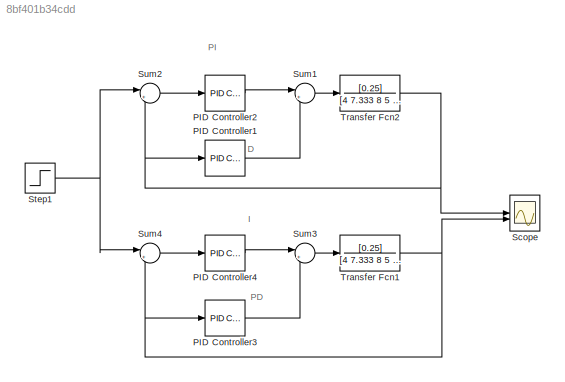
MODEL slx_8bf401b34cdd
KIND model
CONFIG AbsTol = auto
CONFIG EnableMultiTasking = off
CONFIG FixedStep = auto
CONFIG MaxStep = auto
CONFIG MinStep = auto
CONFIG RelTol = 1e-3
CONFIG SampleTimeConstraint = Unconstrained
CONFIG SolverName = VariableStepAuto
CONFIG StartTime = 0.0
CONFIG StopTime = 30
BLOCK [Reference] PID Controller1  REF=slpidlib/PID Controller
  LibrarySourceBlock = simulink/Continuous/PID Controller
  SourceBlock = slpidlib/PID Controller
  SourceType = PID 1dof
BLOCK [Reference] PID Controller2  REF=slpidlib/PID Controller
  LibrarySourceBlock = simulink/Continuous/PID Controller
  SourceBlock = slpidlib/PID Controller
  SourceType = PID 1dof
BLOCK [Reference] PID Controller3  REF=slpidlib/PID Controller
  LibrarySourceBlock = simulink/Continuous/PID Controller
  SourceBlock = slpidlib/PID Controller
  SourceType = PID 1dof
BLOCK [Reference] PID Controller4  REF=slpidlib/PID Controller
  LibrarySourceBlock = simulink/Continuous/PID Controller
  SourceBlock = slpidlib/PID Controller
  SourceType = PID 1dof
BLOCK [Scope] Scope
  Floating = off
  NumInputPorts = 2
  ScopeSpecificationString = Simulink.scopes.TimeScopeBlockCfg('CurrentConfiguration', extmgr.ConfigurationSet(extmgr.Configuration('Core','General UI',true,'FigureColor',[1 1 1]),extmgr.Configuration('Core','Source UI',true),extmgr.Configuration('Sources','WiredSimulink',true),extmgr.Configuration('Visuals','Time Domain',true,'SerializedDisplays',{struct('MinYLimReal','-0.1335','MaxYLimReal','1.2015','YLabelReal','','MinYLim...<+1689ch>
BLOCK [Step] Step1
  SampleTime = 0
  Time = 0
BLOCK [Sum] Sum1
  Inputs = |+-
BLOCK [Sum] Sum2
  Inputs = |+-
BLOCK [Sum] Sum3
  Inputs = |+-
BLOCK [Sum] Sum4
  Inputs = |+-
BLOCK [TransferFcn] Transfer Fcn1
  Denominator = [4 7.333 8 5 1]
  Numerator = [0.25]
BLOCK [TransferFcn] Transfer Fcn2
  Denominator = [4 7.333 8 5 1]
  Numerator = [0.25]
ANNOTATION (root): D
ANNOTATION (root): I
ANNOTATION (root): PD
ANNOTATION (root): PI
LINE PID Controller1:1 -> Sum1:2
LINE PID Controller2:1 -> Sum1:1
LINE PID Controller3:1 -> Sum3:2
LINE PID Controller4:1 -> Sum3:1
NET Step1:1 -> Sum2:1, Sum4:1
LINE Sum1:1 -> Transfer Fcn2:1
LINE Sum2:1 -> PID Controller2:1
LINE Sum3:1 -> Transfer Fcn1:1
LINE Sum4:1 -> PID Controller4:1
NET Transfer Fcn1:1 -> PID Controller3:1, Scope:2, Sum4:2
NET Transfer Fcn2:1 -> PID Controller1:1, Scope:1, Sum2:2
note: NET lines group one-source signal fan-out (src -> all destinations, sorted); 1:1 wires keep LINE
